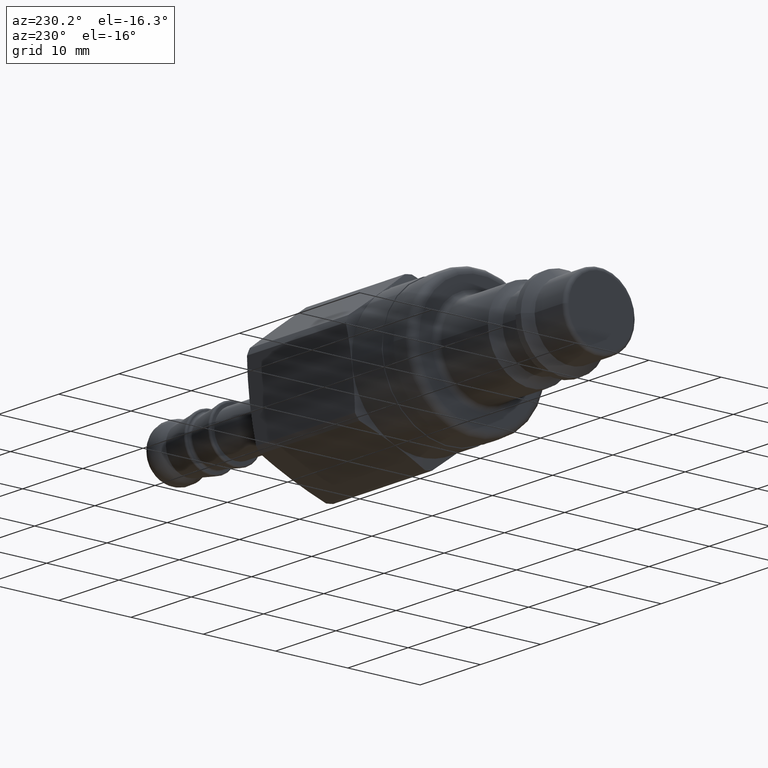
[diagram: clean part render]
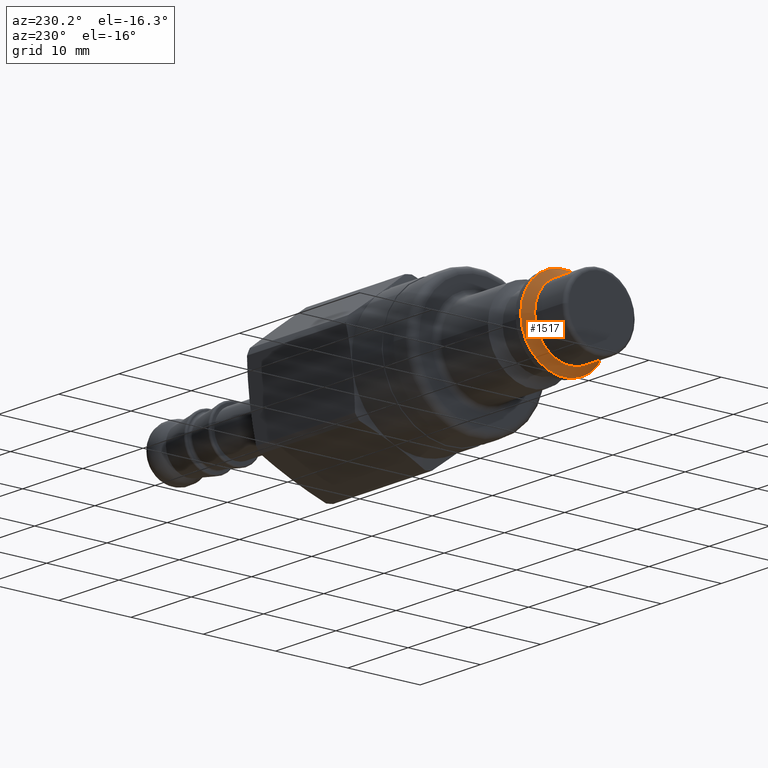
[diagram: same view with one face highlighted and labeled with its STEP entity id]
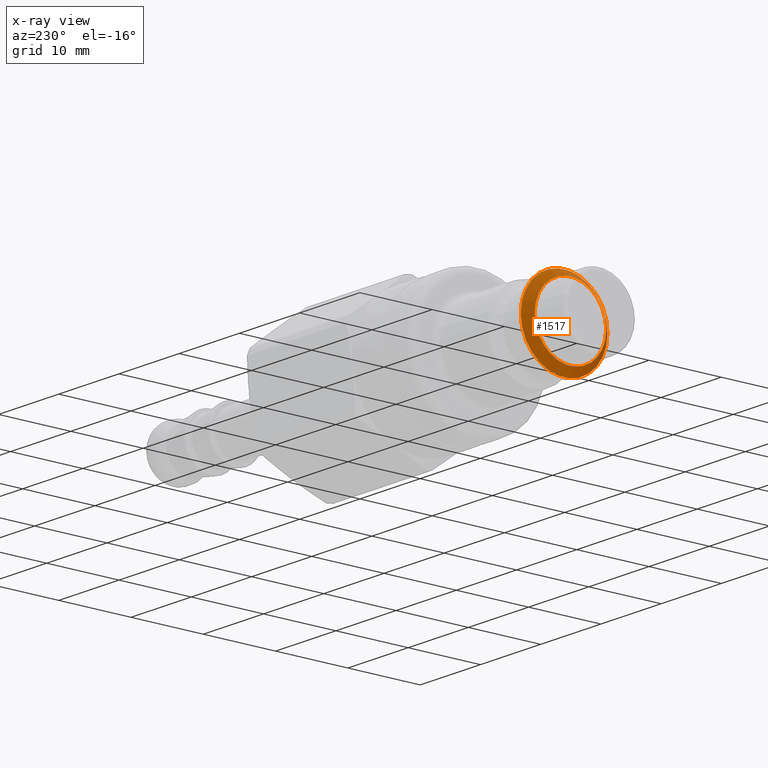
[diagram: x-ray of the same camera — body ghosted, the highlighted face saturated]
A machine part, auxiliary view. The second image highlights one B-rep face of the part: STEP entity #1517.
The next image is the same camera in x-ray: the body ghosted, the highlighted face saturated — about 0% of this face is hidden behind the body in this view.
In plain terms, the highlighted conical surface has half-angle 45 deg.
Its self-contained STEP definition (entity closure, byte-faithful):
#1483=CARTESIAN_POINT('',(5.05,4.95,0.0));
#1484=VERTEX_POINT('',#1483);
#1485=CARTESIAN_POINT('',(5.05,0.0,0.0));
#1486=DIRECTION('',(1.0,0.0,0.0));
#1487=DIRECTION('',(0.0,1.0,0.0));
#1488=AXIS2_PLACEMENT_3D('',#1485,#1486,#1487);
#1489=CIRCLE('',#1488,4.95);
#1490=EDGE_CURVE('',#1484,#1484,#1489,.T.);
#1498=CARTESIAN_POINT('',(5.575000000000001,0.0,0.0));
#1499=DIRECTION('',(1.0,0.0,0.0));
#1500=DIRECTION('',(0.0,1.0,0.0));
#1501=AXIS2_PLACEMENT_3D('',#1498,#1499,#1500);
#1502=CONICAL_SURFACE('',#1501,5.475000000000001,44.999999999999986);
#1503=CARTESIAN_POINT('',(6.100000000000001,6.000000000000001,0.0));
#1504=VERTEX_POINT('',#1503);
#1505=CARTESIAN_POINT('',(6.100000000000001,0.0,0.0));
#1506=DIRECTION('',(1.0,0.0,0.0));
#1507=DIRECTION('',(0.0,1.0,0.0));
#1508=AXIS2_PLACEMENT_3D('',#1505,#1506,#1507);
#1509=CIRCLE('',#1508,6.000000000000001);
#1510=EDGE_CURVE('',#1504,#1504,#1509,.T.);
#1511=ORIENTED_EDGE('',*,*,#1510,.F.);
#1512=EDGE_LOOP('',(#1511));
#1513=FACE_OUTER_BOUND('',#1512,.T.);
#1514=ORIENTED_EDGE('',*,*,#1490,.T.);
#1515=EDGE_LOOP('',(#1514));
#1516=FACE_BOUND('',#1515,.T.);
#1517=ADVANCED_FACE('',(#1513,#1516),#1502,.T.);